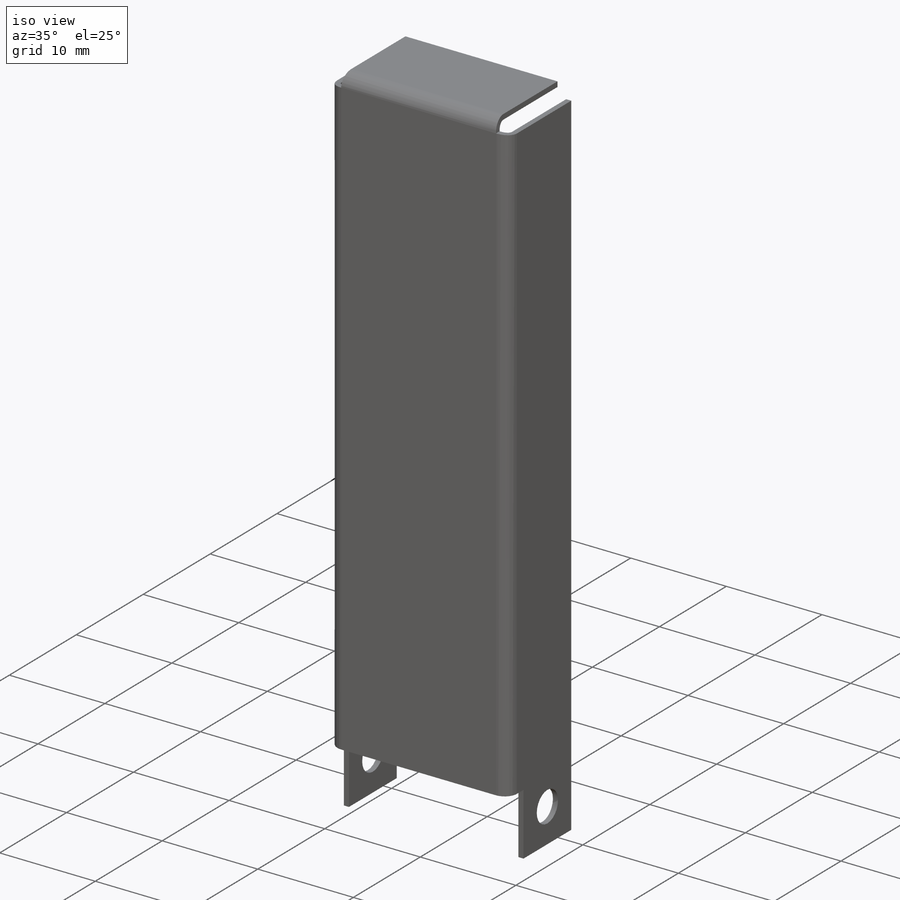
[diagram: iso view]
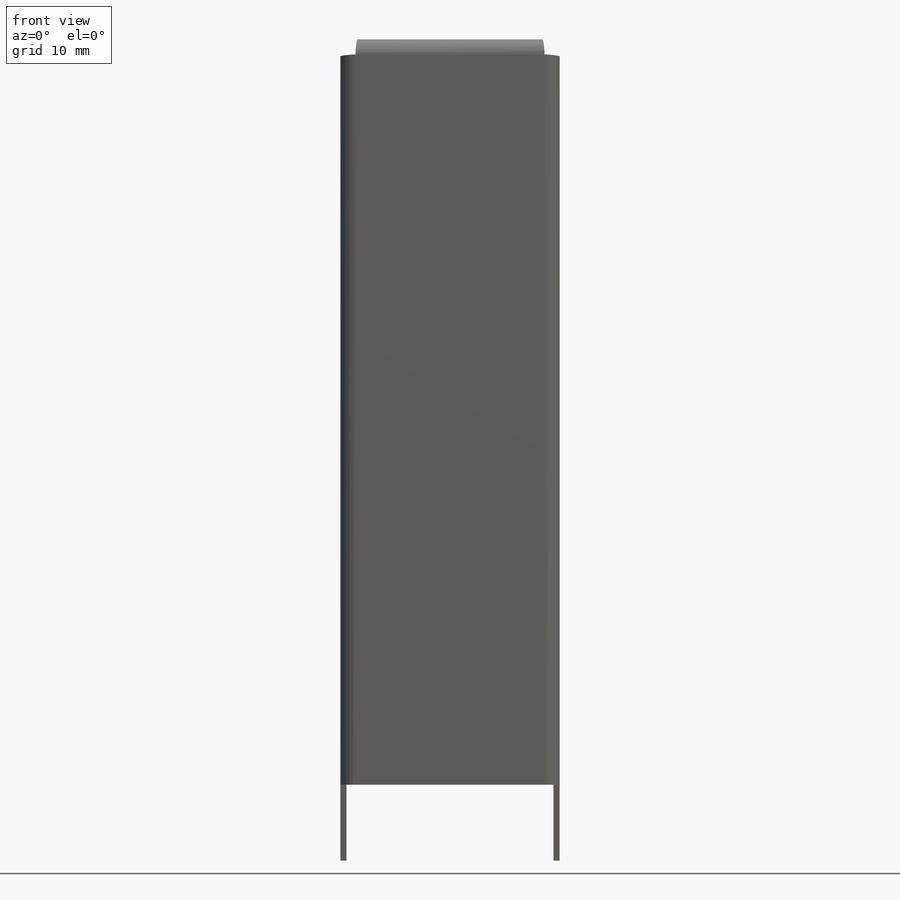
[diagram: front view]
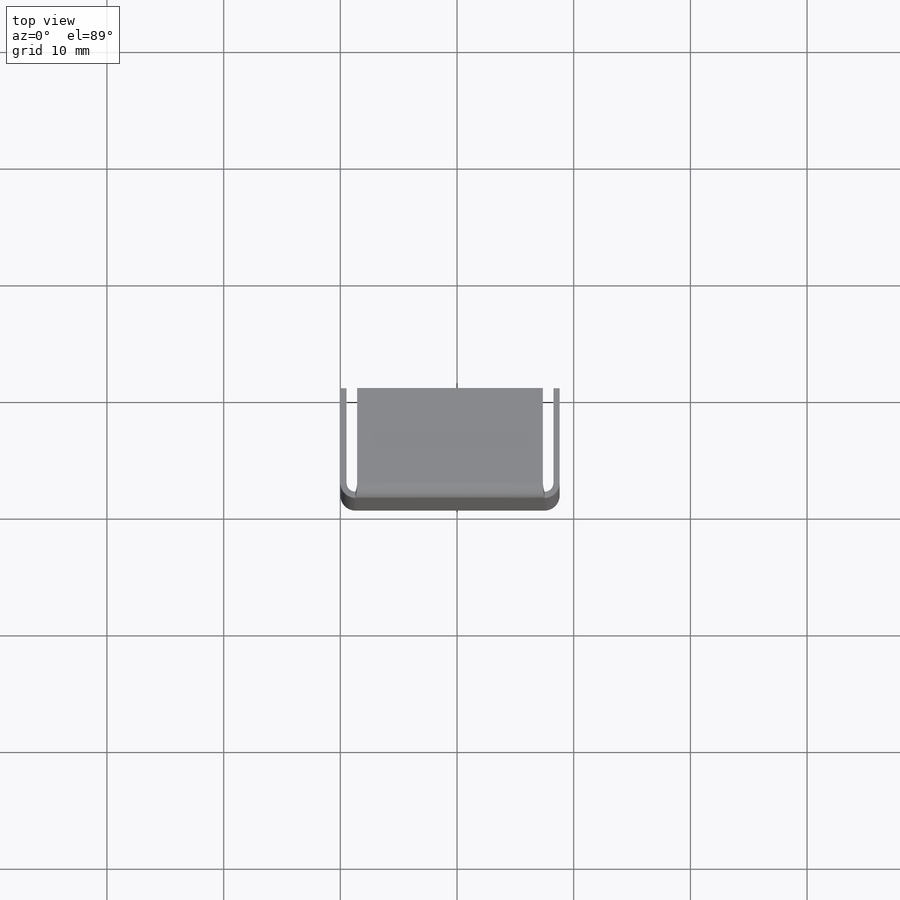
[diagram: top view]
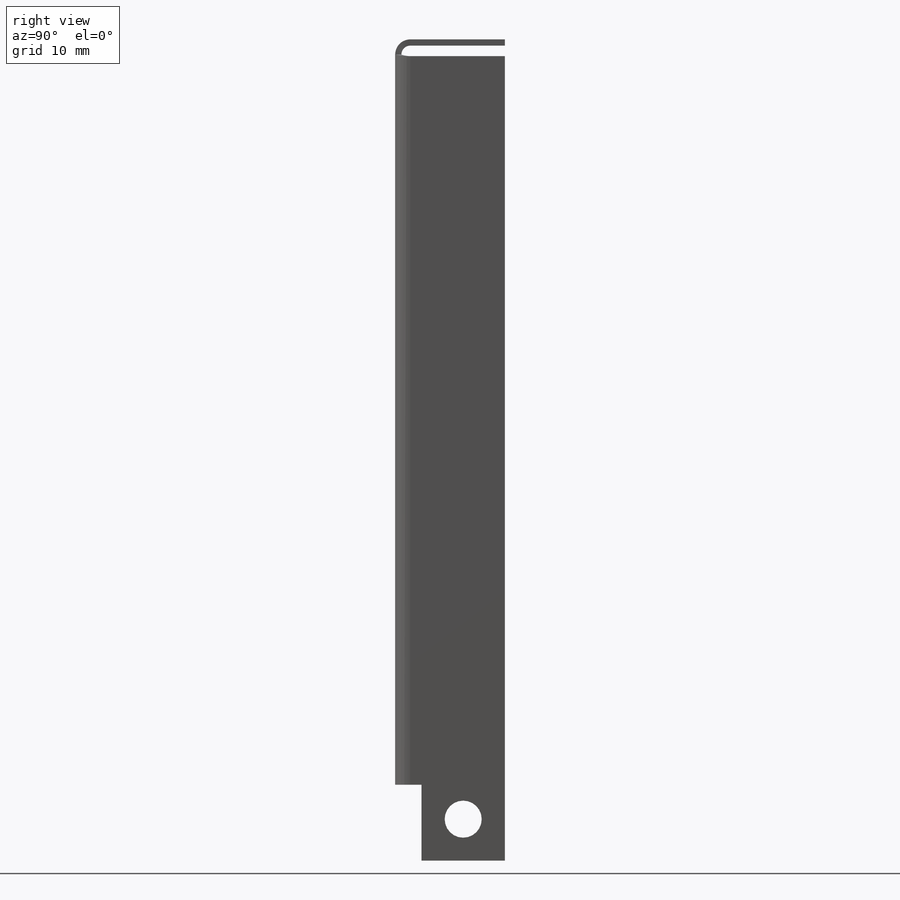
[diagram: right view]
SOLIDWORKS PART (.sldprt)
format: sldprt  version: not decoded by parser v0  size: 227,840 bytes
history: native  units: mm
features: sketch x4, cut_extrude x2, material x1, extrude x1, sheet_metal_op x1 + 3 further entries (+16 scaffold rows collapsed)
feature tree (28):
  scaffold x16  (default folders/planes/origin — collapsed)
  material  "Material <not specified>"
  sketch  "Sketch1"  dims[D1=18.796mm D2=70.3834mm]
  extrude  "Extrude1"  Depth=9.398mm
  sketch  "Sketch2"  dims[D1=7.1374mm D2=6.5024mm]
  cut_extrude  "Extrude2"  [1 undecoded]
  sketch  "Sketch5"  dims[D2=3.175mm D1=3.556mm]
  cut_extrude  "Extrude3"  [1 undecoded]
  sheet_metal_op  "Sheet-Metal2"  Thickness=0.5334mm SharpBend5=0 SharpBend6=0
  "Flat-Pattern2"
  sketch  "Bend-Lines2"
  "Flatten-<SharpBend5>1"
  "Flatten-<SharpBend6>1"
decode coverage: 5 of 8 modeling features carry decoded parameters; 3 rows unclassified (native names shown)
note: 2 parameter values undecoded
note: suppression state not decoded; provenance and decode notes live in map.json
